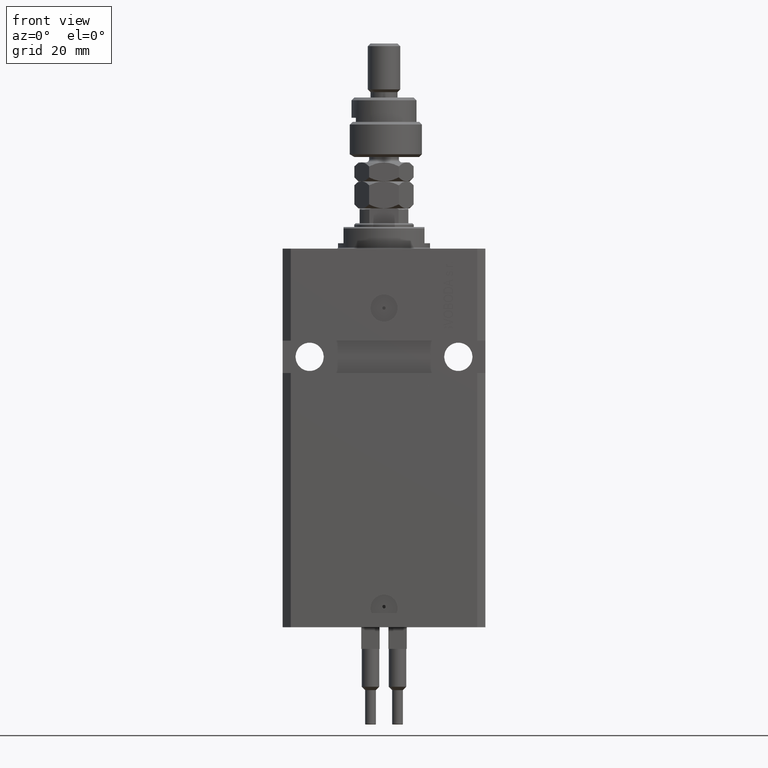
[diagram: clean part render]
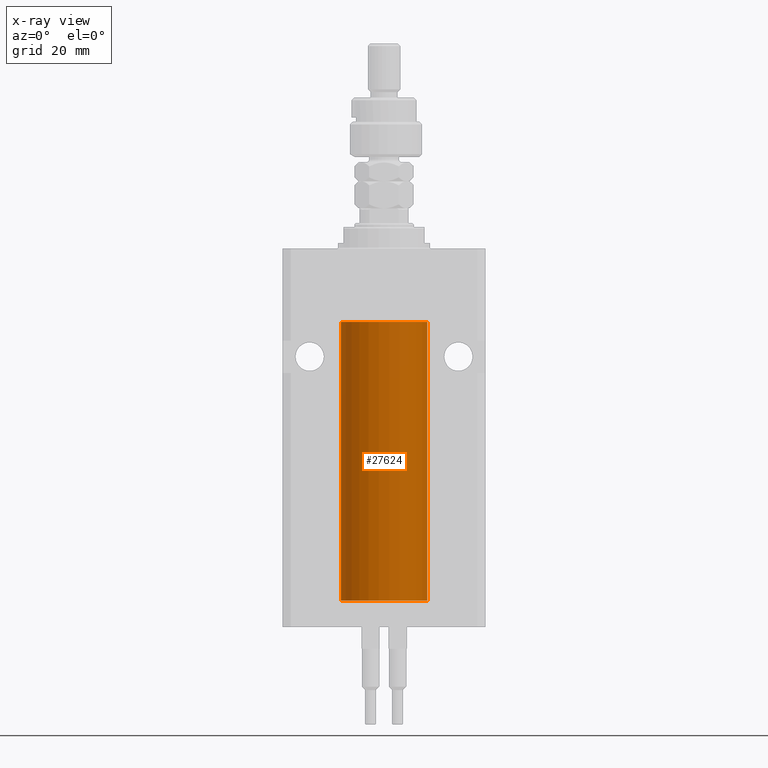
[diagram: x-ray — body ghosted, one internal face saturated and labeled with its STEP entity id]
A machine part, front view, then the same camera in x-ray: the body is ghosted and one INTERNAL B-rep face — a face not visible from any outside direction — is saturated and labeled: STEP entity #27624.
In plain terms, the highlighted cylindrical surface (partial cylindrical patch) has radius 16 mm, axis along (0, 0, 1).
Its self-contained STEP definition (entity closure, byte-faithful):
#1742 = ORIENTED_EDGE ( 'NONE', *, *, #18461, .T. ) ;
#1919 = B_SPLINE_CURVE_WITH_KNOTS ( 'NONE', 3,
 ( #3284, #41834, #30583, #34924, #10950, #50249 ),
 .UNSPECIFIED., .F., .F.,
 ( 4, 2, 4 ),
 ( 0.001954221322144558768, 0.002442922366142232134, 0.002931623410139905066 ),
 .UNSPECIFIED. ) ;
#1952 = CIRCLE ( 'NONE', #32121, 16.00000000000000000 ) ;
#3136 = LINE ( 'NONE', #48861, #29973 ) ;
#3284 = CARTESIAN_POINT ( 'NONE',  ( 16.00000000000013145, 3.665533114689029904E-13, -127.3749999999965752 ) ) ;
#3936 = VERTEX_POINT ( 'NONE', #13701 ) ;
#4096 = EDGE_CURVE ( 'NONE', #38399, #3936, #9509, .T. ) ;
#4292 = CARTESIAN_POINT ( 'NONE',  ( 16.00000000000000000, 2.199125140786256469E-15, -128.6250000000000284 ) ) ;
#4553 = CARTESIAN_POINT ( 'NONE',  ( 15.99070553365076996, -0.5573460204199366386, -128.3264689786301176 ) ) ;
#4901 = CARTESIAN_POINT ( 'NONE',  ( 16.00000000000000000, 0.000000000000000000, -130.0999999999999943 ) ) ;
#5130 = DIRECTION ( 'NONE',  ( 0.000000000000000000, 0.000000000000000000, 1.000000000000000000 ) ) ;
#5627 = VERTEX_POINT ( 'NONE', #24148 ) ;
#7426 = EDGE_LOOP ( 'NONE', ( #18623, #41720, #1742, #21485, #45847, #48100, #50513 ) ) ;
#7997 = VECTOR ( 'NONE', #29234, 1000.000000000000000 ) ;
#8937 = DIRECTION ( 'NONE',  ( -0.000000000000000000, -0.000000000000000000, 1.000000000000000000 ) ) ;
#9368 = EDGE_CURVE ( 'NONE', #31440, #12053, #25042, .T. ) ;
#9509 = LINE ( 'NONE', #28390, #16715 ) ;
#10950 = CARTESIAN_POINT ( 'NONE',  ( 15.98778830858102040, -0.6250000000001306732, -127.8350147931928689 ) ) ;
#11138 = AXIS2_PLACEMENT_3D ( 'NONE', #44147, #8937, #29072 ) ;
#11354 = EDGE_CURVE ( 'NONE', #12053, #17331, #48140, .T. ) ;
#12053 = VERTEX_POINT ( 'NONE', #4901 ) ;
#13701 = CARTESIAN_POINT ( 'NONE',  ( 16.00000000000000000, 0.000000000000000000, -27.10000000000000142 ) ) ;
#14877 = DIRECTION ( 'NONE',  ( -0.000000000000000000, -0.000000000000000000, 1.000000000000000000 ) ) ;
#16715 = VECTOR ( 'NONE', #17166, 1000.000000000000000 ) ;
#16853 = FACE_OUTER_BOUND ( 'NONE', #7426, .T. ) ;
#17097 = CYLINDRICAL_SURFACE ( 'NONE', #11138, 16.00000000000000000 ) ;
#17166 = DIRECTION ( 'NONE',  ( -0.000000000000000000, -0.000000000000000000, 1.000000000000000000 ) ) ;
#17331 = VERTEX_POINT ( 'NONE', #37978 ) ;
#18461 = EDGE_CURVE ( 'NONE', #5627, #3936, #1952, .T. ) ;
#18623 = ORIENTED_EDGE ( 'NONE', *, *, #9368, .F. ) ;
#19557 = DIRECTION ( 'NONE',  ( 0.000000000000000000, 0.000000000000000000, 1.000000000000000000 ) ) ;
#19955 = VERTEX_POINT ( 'NONE', #30342 ) ;
#21485 = ORIENTED_EDGE ( 'NONE', *, *, #4096, .F. ) ;
#23433 = CARTESIAN_POINT ( 'NONE',  ( 16.00000000000000000, -0.1650734421240379612, -128.6250000000000568 ) ) ;
#24148 = CARTESIAN_POINT ( 'NONE',  ( -16.00000000000000000, 1.959434878635765131E-15, -27.10000000000000142 ) ) ;
#25042 = CIRCLE ( 'NONE', #31545, 16.00000000000000000 ) ;
#27624 = ADVANCED_FACE ( 'NONE', ( #16853 ), #17097, .F. ) ;
#27752 = CARTESIAN_POINT ( 'NONE',  ( 15.99707785788560521, -0.3267997233067349017, -128.5571521527664345 ) ) ;
#27886 = EDGE_CURVE ( 'NONE', #19955, #17331, #34448, .T. ) ;
#28006 = CARTESIAN_POINT ( 'NONE',  ( 15.98778830858102040, -0.6250000000001159073, -128.1648119328233690 ) ) ;
#28390 = CARTESIAN_POINT ( 'NONE',  ( 16.00000000000000000, 0.000000000000000000, -130.0999999999999943 ) ) ;
#28480 = CARTESIAN_POINT ( 'NONE',  ( 16.00000000000000000, 0.000000000000000000, -130.0999999999999943 ) ) ;
#29072 = DIRECTION ( 'NONE',  ( 1.000000000000000000, 0.000000000000000000, 0.000000000000000000 ) ) ;
#29234 = DIRECTION ( 'NONE',  ( -0.000000000000000000, -0.000000000000000000, 1.000000000000000000 ) ) ;
#29751 = EDGE_CURVE ( 'NONE', #31440, #5627, #3136, .T. ) ;
#29973 = VECTOR ( 'NONE', #14877, 1000.000000000000000 ) ;
#30342 = CARTESIAN_POINT ( 'NONE',  ( 15.98778830858101685, -0.6250000000001232348, -128.0000000000000000 ) ) ;
#30583 = CARTESIAN_POINT ( 'NONE',  ( 15.99708487730508821, -0.3264777333248704561, -127.4426616680992339 ) ) ;
#31440 = VERTEX_POINT ( 'NONE', #50006 ) ;
#31545 = AXIS2_PLACEMENT_3D ( 'NONE', #39336, #5130, #47247 ) ;
#32121 = AXIS2_PLACEMENT_3D ( 'NONE', #50181, #19557, #34588 ) ;
#34448 = B_SPLINE_CURVE_WITH_KNOTS ( 'NONE', 3,
 ( #47407, #28006, #4553, #27752, #23433, #4292 ),
 .UNSPECIFIED., .F., .F.,
 ( 4, 2, 4 ),
 ( 0.002931623410139905066, 0.003419811200989341087, 0.003907998991838777109 ),
 .UNSPECIFIED. ) ;
#34588 = DIRECTION ( 'NONE',  ( 1.000000000000000000, 0.000000000000000000, 0.000000000000000000 ) ) ;
#34924 = CARTESIAN_POINT ( 'NONE',  ( 15.99071289786271954, -0.5571474671814827806, -127.6731966548882440 ) ) ;
#37978 = CARTESIAN_POINT ( 'NONE',  ( 16.00000000000000000, 2.199125140786256469E-15, -128.6250000000000284 ) ) ;
#38399 = VERTEX_POINT ( 'NONE', #46442 ) ;
#39336 = CARTESIAN_POINT ( 'NONE',  ( 0.000000000000000000, 0.000000000000000000, -130.0999999999999943 ) ) ;
#41720 = ORIENTED_EDGE ( 'NONE', *, *, #29751, .T. ) ;
#41834 = CARTESIAN_POINT ( 'NONE',  ( 16.00000000000000355, -0.1632201307032006554, -127.3749999999998010 ) ) ;
#44147 = CARTESIAN_POINT ( 'NONE',  ( 0.000000000000000000, 0.000000000000000000, -130.0999999999999943 ) ) ;
#45847 = ORIENTED_EDGE ( 'NONE', *, *, #46734, .T. ) ;
#46442 = CARTESIAN_POINT ( 'NONE',  ( 16.00000000000013145, 3.665533114689029904E-13, -127.3749999999965752 ) ) ;
#46734 = EDGE_CURVE ( 'NONE', #38399, #19955, #1919, .T. ) ;
#47247 = DIRECTION ( 'NONE',  ( 1.000000000000000000, 0.000000000000000000, 0.000000000000000000 ) ) ;
#47407 = CARTESIAN_POINT ( 'NONE',  ( 15.98778830858101685, -0.6250000000001232348, -128.0000000000000000 ) ) ;
#48100 = ORIENTED_EDGE ( 'NONE', *, *, #27886, .T. ) ;
#48140 = LINE ( 'NONE', #28480, #7997 ) ;
#48861 = CARTESIAN_POINT ( 'NONE',  ( -16.00000000000000000, 1.959434878635765131E-15, -130.0999999999999943 ) ) ;
#50006 = CARTESIAN_POINT ( 'NONE',  ( -16.00000000000000000, 1.959434878635765131E-15, -130.0999999999999943 ) ) ;
#50181 = CARTESIAN_POINT ( 'NONE',  ( 0.000000000000000000, 0.000000000000000000, -27.10000000000000142 ) ) ;
#50249 = CARTESIAN_POINT ( 'NONE',  ( 15.98778830858101685, -0.6250000000001232348, -128.0000000000000000 ) ) ;
#50513 = ORIENTED_EDGE ( 'NONE', *, *, #11354, .F. ) ;